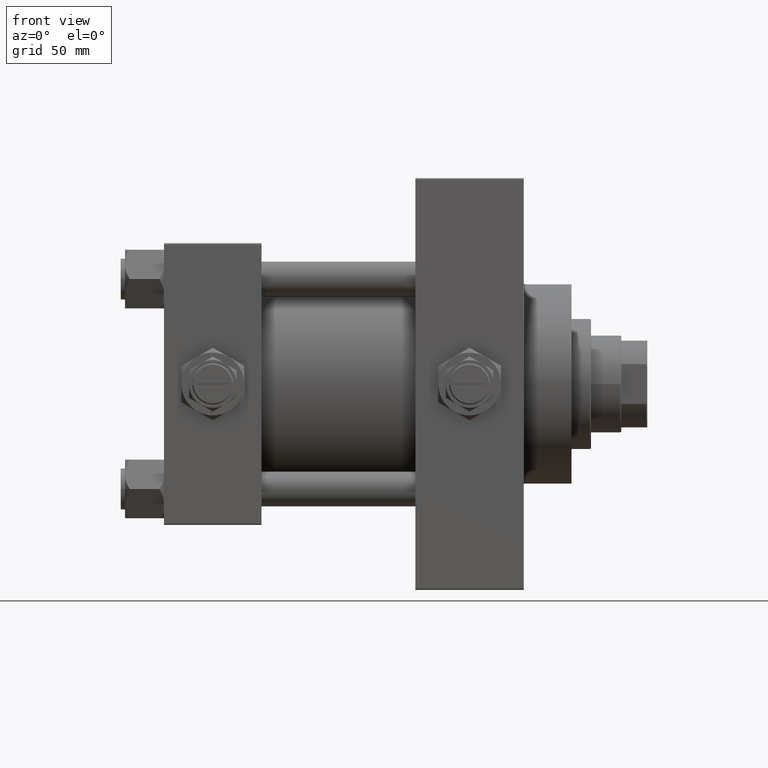
[diagram: clean part render]
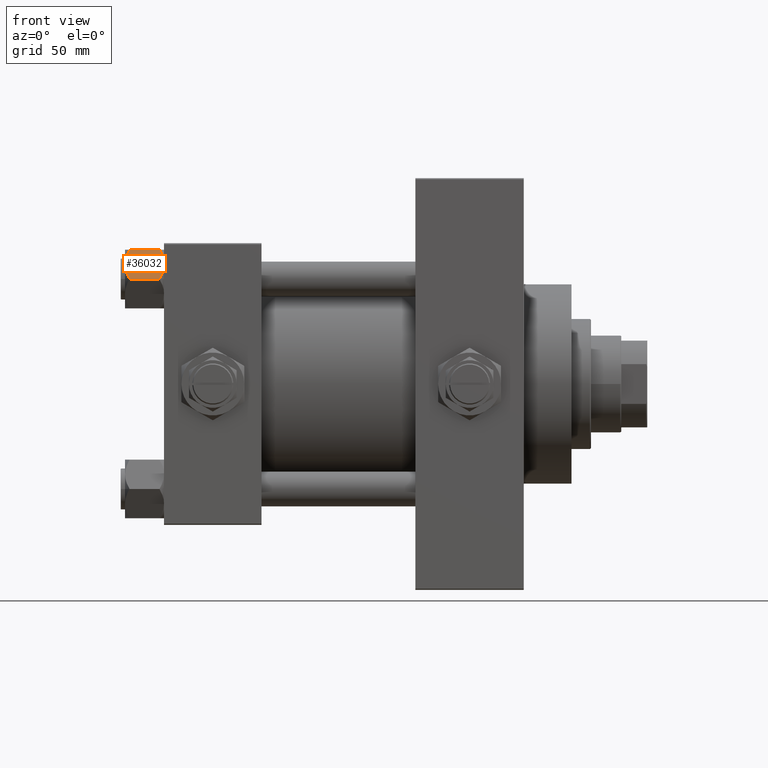
[diagram: same view with one face highlighted and labeled with its STEP entity id]
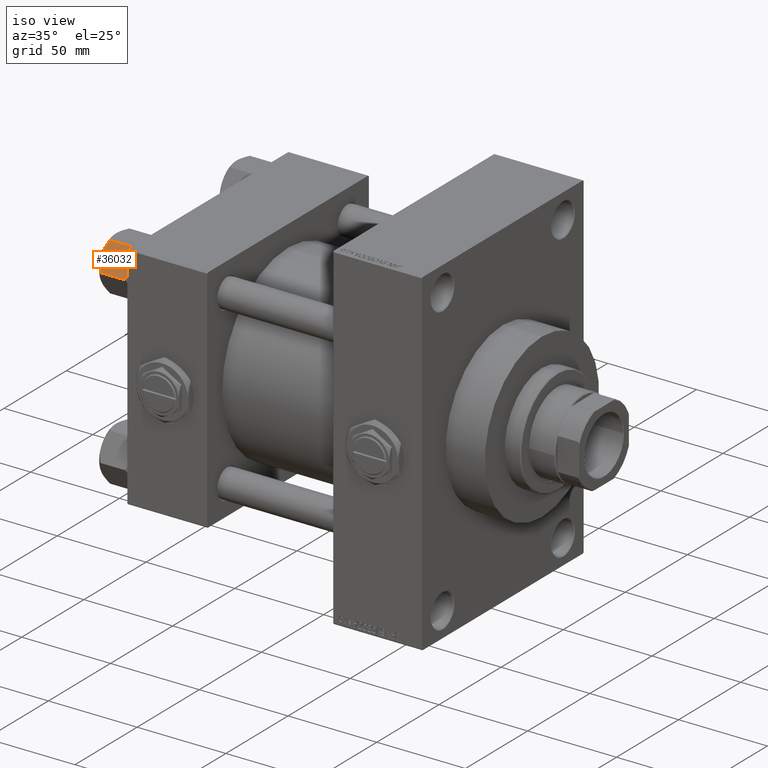
[diagram: same view with one face highlighted and labeled with its STEP entity id]
A machine part, front view. The second image highlights one B-rep face of the part: STEP entity #36032.
A second angle (iso view) of the same face is appended — the face is thin or edge-on in the first view.
In plain terms, the highlighted planar face has unit normal (0, 0.866, -0.5).
Its self-contained STEP definition (entity closure, byte-faithful):
#418 = DIRECTION ( 'NONE',  ( 0.4999999999999994449, -0.8660254037844390407, 0.000000000000000000 ) ) ;
#1103 = EDGE_CURVE ( 'NONE', #9160, #38809, #39616, .T. ) ;
#1424 = CARTESIAN_POINT ( 'NONE',  ( -9.114548888011787753, -11.26777185211903820, -17.08577173959730899 ) ) ;
#3989 = EDGE_CURVE ( 'NONE', #26083, #30445, #30288, .T. ) ;
#4009 = VERTEX_POINT ( 'NONE', #23228 ) ;
#4395 = CARTESIAN_POINT ( 'NONE',  ( -11.71500000000000874, -6.763658403556459753, 0.000000000000000000 ) ) ;
#4425 = CARTESIAN_POINT ( 'NONE',  ( -11.71500000000000874, -6.763658403556459753, -18.00000000000000000 ) ) ;
#4463 = EDGE_CURVE ( 'NONE', #26083, #48902, #34424, .T. ) ;
#4491 = ORIENTED_EDGE ( 'NONE', *, *, #22154, .F. ) ;
#4545 = VECTOR ( 'NONE', #44356, 1000.000000000000000 ) ;
#4636 = EDGE_CURVE ( 'NONE', #38809, #24960, #31625, .T. ) ;
#4888 = CARTESIAN_POINT ( 'NONE',  ( -7.809999999999999609, -13.52731680711293727, -1.999999999999998224 ) ) ;
#6474 = LINE ( 'NONE', #46234, #9763 ) ;
#7385 = VECTOR ( 'NONE', #22822, 999.9999999999998863 ) ;
#7445 = ORIENTED_EDGE ( 'NONE', *, *, #1103, .F. ) ;
#7977 = CARTESIAN_POINT ( 'NONE',  ( -7.809999999999999609, -13.52731680711293727, -16.00000000000000000 ) ) ;
#8198 = CARTESIAN_POINT ( 'NONE',  ( -13.99051971937274530, -2.822342635977989289, -17.26828031537188934 ) ) ;
#8244 = CARTESIAN_POINT ( 'NONE',  ( -7.809999999999999609, -13.52731680711293727, -16.00000000000000000 ) ) ;
#8845 = ORIENTED_EDGE ( 'NONE', *, *, #3989, .T. ) ;
#9143 = ORIENTED_EDGE ( 'NONE', *, *, #39462, .F. ) ;
#9160 = VERTEX_POINT ( 'NONE', #26755 ) ;
#9174 = CARTESIAN_POINT ( 'NONE',  ( -7.809999999999999609, -13.52731680711293727, -16.00000000000000000 ) ) ;
#9624 = B_SPLINE_CURVE_WITH_KNOTS ( 'NONE', 3,
 ( #4425, #42938, #39159, #8198, #34898, #15763, #11978, #27324 ),
 .UNSPECIFIED., .F., .F.,
 ( 4, 2, 2, 4 ),
 ( 0.007890825462474436100, 0.01181022244528555712, 0.01376992093669111850, 0.01572961942809667987 ),
 .UNSPECIFIED. ) ;
#9763 = VECTOR ( 'NONE', #418, 999.9999999999998863 ) ;
#10685 = CARTESIAN_POINT ( 'NONE',  ( -13.36540581434588226, -3.905071680002305534, -0.3836066851120543686 ) ) ;
#10701 = EDGE_CURVE ( 'NONE', #18302, #26747, #9624, .T. ) ;
#11978 = CARTESIAN_POINT ( 'NONE',  ( -15.22736220980736199, -0.6800686015852018818, -16.29368822085855584 ) ) ;
#12951 = DIRECTION ( 'NONE',  ( 0.4999999999999994449, -0.8660254037844390407, 0.000000000000000000 ) ) ;
#13653 = AXIS2_PLACEMENT_3D ( 'NONE', #38166, #45954, #42942 ) ;
#13798 = CARTESIAN_POINT ( 'NONE',  ( -8.506059550806618574, -12.32170630002230816, -1.434462921875002461 ) ) ;
#14225 = CARTESIAN_POINT ( 'NONE',  ( -13.04337073483128329, -4.462852799541069615, -0.2430846701012900901 ) ) ;
#14537 = CARTESIAN_POINT ( 'NONE',  ( -7.903528262322674358, -13.36532110482643354, -2.000000000000000000 ) ) ;
#15763 = CARTESIAN_POINT ( 'NONE',  ( -14.92394044919338825, -1.205610507090610461, -16.56553707812500065 ) ) ;
#15766 = FACE_OUTER_BOUND ( 'NONE', #28039, .T. ) ;
#16646 = ORIENTED_EDGE ( 'NONE', *, *, #39509, .F. ) ;
#18076 = CARTESIAN_POINT ( 'NONE',  ( -15.52647173767732980, -0.1619957022864788043, -16.00000000000000000 ) ) ;
#18302 = VERTEX_POINT ( 'NONE', #41858 ) ;
#19274 = PLANE ( 'NONE',  #13653 ) ;
#19427 = VECTOR ( 'NONE', #46143, 1000.000000000000000 ) ;
#20070 = CARTESIAN_POINT ( 'NONE',  ( -11.38181071908714692, -7.340759166634859945, -18.00000000000001421 ) ) ;
#21515 = CARTESIAN_POINT ( 'NONE',  ( -14.31545111198821552, -2.259544954993873311, -0.9142282604026915616 ) ) ;
#22154 = EDGE_CURVE ( 'NONE', #4009, #9160, #35846, .T. ) ;
#22822 = DIRECTION ( 'NONE',  ( -0.4999999999999994449, 0.8660254037844390407, 0.000000000000000000 ) ) ;
#23228 = CARTESIAN_POINT ( 'NONE',  ( -15.61999999999999567, 8.023367828467702033E-15, -16.00000000000000000 ) ) ;
#23334 = VECTOR ( 'NONE', #12951, 999.9999999999998863 ) ;
#23587 = DIRECTION ( 'NONE',  ( -0.4999999999999994449, 0.8660254037844390407, 0.000000000000000000 ) ) ;
#23827 = VERTEX_POINT ( 'NONE', #33850 ) ;
#24332 = CARTESIAN_POINT ( 'NONE',  ( -11.04378428799595468, -7.926238119585997666, -17.94910618364700028 ) ) ;
#24721 = ORIENTED_EDGE ( 'NONE', *, *, #26883, .F. ) ;
#24960 = VERTEX_POINT ( 'NONE', #4395 ) ;
#25578 = VECTOR ( 'NONE', #23587, 999.9999999999998863 ) ;
#26030 = CARTESIAN_POINT ( 'NONE',  ( -11.71500000000000874, -6.763658403556459753, 0.000000000000000000 ) ) ;
#26083 = VERTEX_POINT ( 'NONE', #9174 ) ;
#26747 = VERTEX_POINT ( 'NONE', #18076 ) ;
#26755 = CARTESIAN_POINT ( 'NONE',  ( -15.61999999999999567, 8.023367828467702033E-15, -1.999999999999998224 ) ) ;
#26883 = EDGE_CURVE ( 'NONE', #26747, #4009, #42226, .T. ) ;
#27324 = CARTESIAN_POINT ( 'NONE',  ( -15.52647173767732980, -0.1619957022864788043, -16.00000000000000000 ) ) ;
#27867 = CARTESIAN_POINT ( 'NONE',  ( -10.06459418565412456, -9.622245127110602425, -17.61639331488794014 ) ) ;
#28039 = EDGE_LOOP ( 'NONE', ( #47173, #8845, #16646, #9143, #45292, #7445, #4491, #24721, #33583, #37429 ) ) ;
#29387 = CARTESIAN_POINT ( 'NONE',  ( -10.40215497533437805, -9.037572688741340343, -0.1971866459924474513 ) ) ;
#29559 = CARTESIAN_POINT ( 'NONE',  ( -12.38621571200405391, -5.601078687526916511, -0.05089381635300645190 ) ) ;
#29637 = CARTESIAN_POINT ( 'NONE',  ( -11.05297796109637787, -7.910314210667872103, 9.086969458144130882E-15 ) ) ;
#29676 = B_SPLINE_CURVE_WITH_KNOTS ( 'NONE', 3,
 ( #47969, #35431, #1424, #27867, #40430, #24332, #20070, #39938 ),
 .UNSPECIFIED., .F., .F.,
 ( 4, 2, 2, 4 ),
 ( 4.472842641813524291E-07, 0.003945636373369312659, 0.005918230917921874813, 0.007890825462474436100 ),
 .UNSPECIFIED. ) ;
#30064 = CARTESIAN_POINT ( 'NONE',  ( -14.92760668674625002, -1.199260397376427090, -1.411989271640064825 ) ) ;
#30288 = LINE ( 'NONE', #49656, #19427 ) ;
#30445 = VERTEX_POINT ( 'NONE', #47636 ) ;
#31625 = B_SPLINE_CURVE_WITH_KNOTS ( 'NONE', 3,
 ( #33596, #30064, #21515, #10685, #14225, #29559, #44918, #26030 ),
 .UNSPECIFIED., .F., .F.,
 ( 4, 2, 2, 4 ),
 ( 4.472842641982724416E-07, 0.003945636373369324802, 0.005918230917921887824, 0.007890825462474451713 ),
 .UNSPECIFIED. ) ;
#32429 = B_SPLINE_CURVE_WITH_KNOTS ( 'NONE', 3,
 ( #33667, #29637, #29387, #48754, #40225, #13798, #49000, #14537 ),
 .UNSPECIFIED., .F., .F.,
 ( 4, 2, 2, 4 ),
 ( 0.007890825462474451713, 0.01181022244528557794, 0.01376992093669113758, 0.01572961942809669722 ),
 .UNSPECIFIED. ) ;
#33583 = ORIENTED_EDGE ( 'NONE', *, *, #10701, .F. ) ;
#33596 = CARTESIAN_POINT ( 'NONE',  ( -15.52647173767732980, -0.1619957022864788043, -2.000000000000000000 ) ) ;
#33667 = CARTESIAN_POINT ( 'NONE',  ( -11.71500000000000874, -6.763658403556459753, 0.000000000000000000 ) ) ;
#33850 = CARTESIAN_POINT ( 'NONE',  ( -7.903528262322674358, -13.36532110482643354, -2.000000000000000000 ) ) ;
#34424 = LINE ( 'NONE', #7977, #7385 ) ;
#34898 = CARTESIAN_POINT ( 'NONE',  ( -14.30591678195076533, -2.276058899034876681, -17.05261278537718894 ) ) ;
#35431 = CARTESIAN_POINT ( 'NONE',  ( -8.502393313253753249, -12.32805640973648664, -16.58801072835993651 ) ) ;
#35846 = LINE ( 'NONE', #36329, #4545 ) ;
#36032 = ADVANCED_FACE ( 'NONE', ( #15766 ), #19274, .F. ) ;
#36329 = CARTESIAN_POINT ( 'NONE',  ( -15.61999999999999567, 8.023367828467702033E-15, -18.00000000000000000 ) ) ;
#37429 = ORIENTED_EDGE ( 'NONE', *, *, #45467, .F. ) ;
#38166 = CARTESIAN_POINT ( 'NONE',  ( -7.809999999999999609, -13.52731680711293727, -18.00000000000000000 ) ) ;
#38809 = VERTEX_POINT ( 'NONE', #48629 ) ;
#39159 = CARTESIAN_POINT ( 'NONE',  ( -13.02784502466562699, -4.489744118371570281, -17.80281335400755083 ) ) ;
#39462 = EDGE_CURVE ( 'NONE', #24960, #23827, #32429, .T. ) ;
#39509 = EDGE_CURVE ( 'NONE', #23827, #30445, #6474, .T. ) ;
#39616 = LINE ( 'NONE', #4888, #23334 ) ;
#39938 = CARTESIAN_POINT ( 'NONE',  ( -11.71500000000000874, -6.763658403556459753, -18.00000000000000000 ) ) ;
#40225 = CARTESIAN_POINT ( 'NONE',  ( -9.124083218049237942, -11.25125790807803838, -0.9473872146228101698 ) ) ;
#40430 = CARTESIAN_POINT ( 'NONE',  ( -10.38662926516872353, -9.064464007571846338, -17.75691532989871746 ) ) ;
#41858 = CARTESIAN_POINT ( 'NONE',  ( -11.71500000000000874, -6.763658403556459753, -18.00000000000000000 ) ) ;
#42226 = LINE ( 'NONE', #8244, #25578 ) ;
#42938 = CARTESIAN_POINT ( 'NONE',  ( -12.37702203890362540, -5.617002596445037632, -18.00000000000000711 ) ) ;
#42942 = DIRECTION ( 'NONE',  ( -0.4999999999999993894, 0.8660254037844389297, 0.000000000000000000 ) ) ;
#43301 = CARTESIAN_POINT ( 'NONE',  ( -7.903528262322674358, -13.36532110482643354, -16.00000000000000000 ) ) ;
#44356 = DIRECTION ( 'NONE',  ( -0.000000000000000000, -0.000000000000000000, 1.000000000000000000 ) ) ;
#44918 = CARTESIAN_POINT ( 'NONE',  ( -12.04818928091285635, -6.186557640478051567, 9.103910117089220044E-15 ) ) ;
#45292 = ORIENTED_EDGE ( 'NONE', *, *, #4636, .F. ) ;
#45467 = EDGE_CURVE ( 'NONE', #48902, #18302, #29676, .T. ) ;
#45954 = DIRECTION ( 'NONE',  ( 0.8660254037844390407, 0.4999999999999994449, 0.000000000000000000 ) ) ;
#46143 = DIRECTION ( 'NONE',  ( -0.000000000000000000, -0.000000000000000000, 1.000000000000000000 ) ) ;
#46234 = CARTESIAN_POINT ( 'NONE',  ( -7.809999999999999609, -13.52731680711293727, -1.999999999999998224 ) ) ;
#47173 = ORIENTED_EDGE ( 'NONE', *, *, #4463, .F. ) ;
#47636 = CARTESIAN_POINT ( 'NONE',  ( -7.809999999999999609, -13.52731680711293727, -1.999999999999998224 ) ) ;
#47969 = CARTESIAN_POINT ( 'NONE',  ( -7.903528262322674358, -13.36532110482643354, -16.00000000000000000 ) ) ;
#48629 = CARTESIAN_POINT ( 'NONE',  ( -15.52647173767732980, -0.1619957022864788043, -2.000000000000000000 ) ) ;
#48754 = CARTESIAN_POINT ( 'NONE',  ( -9.439480280627259745, -10.70497417113492311, -0.7317196846281081024 ) ) ;
#48902 = VERTEX_POINT ( 'NONE', #43301 ) ;
#49000 = CARTESIAN_POINT ( 'NONE',  ( -8.202637790192643052, -12.84724820552771085, -1.706311779141444829 ) ) ;
#49656 = CARTESIAN_POINT ( 'NONE',  ( -7.809999999999999609, -13.52731680711293727, -18.00000000000000000 ) ) ;